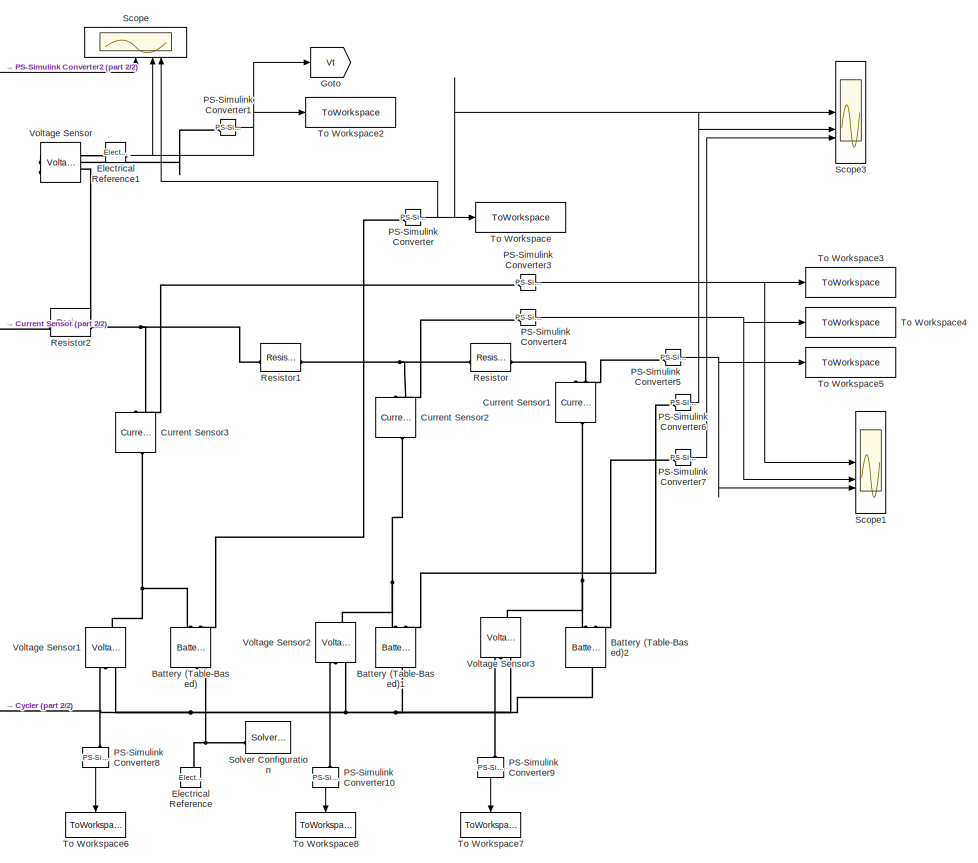
[diagram: root canvas - part 1/2, right side, full height]
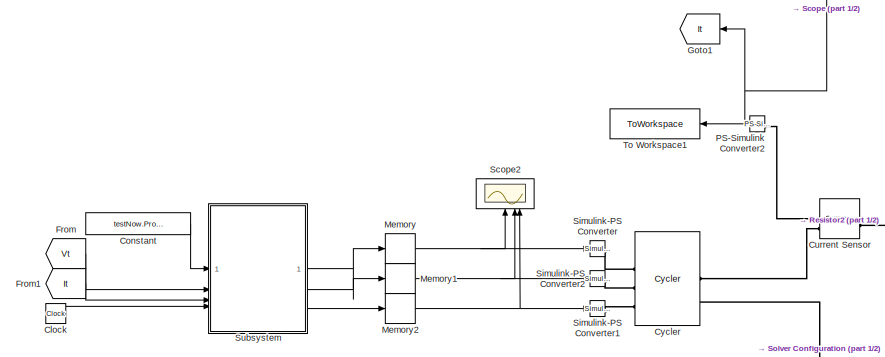
[diagram: root canvas - part 2/2, middle left region]
MODEL slx_6b83fe5bd4cd
KIND model
CONFIG AbsTol = auto
CONFIG EnableMultiTasking = off
CONFIG FixedStep = auto
CONFIG MaxStep = 0.1
CONFIG MinStep = auto
CONFIG RelTol = 1e-3
CONFIG SampleTimeConstraint = Unconstrained
CONFIG SolverName = VariableStepAuto
CONFIG StartTime = 0.0
CONFIG StopTime = 68000
BLOCK [Reference] Battery (Table-Based)  REF=batteryecm_lib/Battery
(Table-Based)
  NameLocation = right
  SourceBlock = batteryecm_lib/Battery\n(Table-Based)
  SourceType = Battery\n(Table-Based)
BLOCK [Reference] Battery (Table-Based)1  REF=batteryecm_lib/Battery
(Table-Based)
  NameLocation = right
  SourceBlock = batteryecm_lib/Battery\n(Table-Based)
  SourceType = Battery\n(Table-Based)
BLOCK [Reference] Battery (Table-Based)2  REF=batteryecm_lib/Battery
(Table-Based)
  NameLocation = right
  SourceBlock = batteryecm_lib/Battery\n(Table-Based)
  SourceType = Battery\n(Table-Based)
BLOCK [Clock] Clock
BLOCK [Constant] Constant
  Value = testNow.Procedure
BLOCK [Reference] Current Sensor  REF=fl_lib/Electrical/Electrical Sensors/Current Sensor
  NameLocation = top
  SourceBlock = fl_lib/Electrical/Electrical Sensors/Current Sensor
  SourceType = Current Sensor
BLOCK [Reference] Current Sensor1  REF=fl_lib/Electrical/Electrical Sensors/Current Sensor
  NameLocation = right
  SourceBlock = fl_lib/Electrical/Electrical Sensors/Current Sensor
  SourceType = Current Sensor
BLOCK [Reference] Current Sensor2  REF=fl_lib/Electrical/Electrical Sensors/Current Sensor
  NameLocation = right
  SourceBlock = fl_lib/Electrical/Electrical Sensors/Current Sensor
  SourceType = Current Sensor
BLOCK [Reference] Current Sensor3  REF=fl_lib/Electrical/Electrical Sensors/Current Sensor
  NameLocation = right
  SourceBlock = fl_lib/Electrical/Electrical Sensors/Current Sensor
  SourceType = Current Sensor
BLOCK [Reference] Cycler  REF=batt_lib/Cyclers/Cycler
  SourceBlock = batt_lib/Cyclers/Cycler
  SourceType = Cycler
BLOCK [Reference] Electrical Reference  REF=fl_lib/Electrical/Electrical Elements/Electrical Reference
  LibrarySourceBlock = ee_lib/Connectors &\nReferences/Electrical Reference
  NameLocation = right
  SourceBlock = fl_lib/Electrical/Electrical Elements/Electrical Reference
  SourceType = Electrical Reference
BLOCK [Reference] Electrical Reference1  REF=fl_lib/Electrical/Electrical Elements/Electrical Reference
  LibrarySourceBlock = ee_lib/Connectors &\nReferences/Electrical Reference
  NameLocation = top
  SourceBlock = fl_lib/Electrical/Electrical Elements/Electrical Reference
  SourceType = Electrical Reference
BLOCK [From] From
  GotoTag = Vt
BLOCK [From] From1
  GotoTag = It
BLOCK [Goto] Goto
  GotoTag = Vt
BLOCK [Goto] Goto1
  GotoTag = It
  NameLocation = top
BLOCK [Memory] Memory
BLOCK [Memory] Memory1
  InitialCondition = 2.7
BLOCK [Memory] Memory2
BLOCK [Reference] PS-Simulink Converter  REF=nesl_utility/PS-Simulink
Converter
  SourceBlock = nesl_utility/PS-Simulink\nConverter
  SourceType = PS-Simulink\nConverter
BLOCK [Reference] PS-Simulink Converter1  REF=nesl_utility/PS-Simulink
Converter
  SourceBlock = nesl_utility/PS-Simulink\nConverter
  SourceType = PS-Simulink\nConverter
BLOCK [Reference] PS-Simulink Converter10  REF=nesl_utility/PS-Simulink
Converter
  NameLocation = left
  SourceBlock = nesl_utility/PS-Simulink\nConverter
  SourceType = PS-Simulink\nConverter
BLOCK [Reference] PS-Simulink Converter2  REF=nesl_utility/PS-Simulink
Converter
  NameLocation = top
  SourceBlock = nesl_utility/PS-Simulink\nConverter
  SourceType = PS-Simulink\nConverter
BLOCK [Reference] PS-Simulink Converter3  REF=nesl_utility/PS-Simulink
Converter
  SourceBlock = nesl_utility/PS-Simulink\nConverter
  SourceType = PS-Simulink\nConverter
BLOCK [Reference] PS-Simulink Converter4  REF=nesl_utility/PS-Simulink
Converter
  SourceBlock = nesl_utility/PS-Simulink\nConverter
  SourceType = PS-Simulink\nConverter
BLOCK [Reference] PS-Simulink Converter5  REF=nesl_utility/PS-Simulink
Converter
  SourceBlock = nesl_utility/PS-Simulink\nConverter
  SourceType = PS-Simulink\nConverter
BLOCK [Reference] PS-Simulink Converter6  REF=nesl_utility/PS-Simulink
Converter
  SourceBlock = nesl_utility/PS-Simulink\nConverter
  SourceType = PS-Simulink\nConverter
BLOCK [Reference] PS-Simulink Converter7  REF=nesl_utility/PS-Simulink
Converter
  SourceBlock = nesl_utility/PS-Simulink\nConverter
  SourceType = PS-Simulink\nConverter
BLOCK [Reference] PS-Simulink Converter8  REF=nesl_utility/PS-Simulink
Converter
  NameLocation = left
  SourceBlock = nesl_utility/PS-Simulink\nConverter
  SourceType = PS-Simulink\nConverter
BLOCK [Reference] PS-Simulink Converter9  REF=nesl_utility/PS-Simulink
Converter
  NameLocation = left
  SourceBlock = nesl_utility/PS-Simulink\nConverter
  SourceType = PS-Simulink\nConverter
BLOCK [Reference] Resistor  REF=fl_lib/Electrical/Electrical Elements/Resistor
  SourceBlock = fl_lib/Electrical/Electrical Elements/Resistor
  SourceType = Resistor
BLOCK [Reference] Resistor1  REF=fl_lib/Electrical/Electrical Elements/Resistor
  SourceBlock = fl_lib/Electrical/Electrical Elements/Resistor
  SourceType = Resistor
BLOCK [Reference] Resistor2  REF=fl_lib/Electrical/Electrical Elements/Resistor
  SourceBlock = fl_lib/Electrical/Electrical Elements/Resistor
  SourceType = Resistor
BLOCK [Scope] Scope
  Floating = off
  NameLocation = right
  NumInputPorts = 3
  ScopeSpecificationString = Simulink.scopes.TimeScopeBlockCfg('CurrentConfiguration', extmgr.ConfigurationSet(extmgr.Configuration('Core','General UI',true),extmgr.Configuration('Core','Source UI',true),extmgr.Configuration('Sources','WiredSimulink',true,'DataLoggingVariableName','ScopeData1'),extmgr.Configuration('Visuals','Time Domain',true,'SerializedDisplays',{struct('MinYLimReal','-20.00000','MaxYLimReal','20.00000','YL...<+2869ch>
BLOCK [Scope] Scope1
  Floating = off
  NumInputPorts = 3
  ScopeSpecificationString = Simulink.scopes.TimeScopeBlockCfg('CurrentConfiguration', extmgr.ConfigurationSet(extmgr.Configuration('Core','General UI',true),extmgr.Configuration('Core','Source UI',true),extmgr.Configuration('Sources','WiredSimulink',true,'DataLoggingVariableName','ScopeData2'),extmgr.Configuration('Visuals','Time Domain',true,'SerializedDisplays',{struct('MinYLimReal','-10.90991','MaxYLimReal','10.90995','YL...<+2993ch>
BLOCK [Scope] Scope2
  Floating = off
  NameLocation = right
  NumInputPorts = 3
  ScopeSpecificationString = Simulink.scopes.TimeScopeBlockCfg('CurrentConfiguration', extmgr.ConfigurationSet(extmgr.Configuration('Core','General UI',true),extmgr.Configuration('Core','Source UI',true),extmgr.Configuration('Sources','WiredSimulink',true,'DataLoggingVariableName','ScopeData2'),extmgr.Configuration('Visuals','Time Domain',true,'SerializedDisplays',{struct('MinYLimReal','-20.00000','MaxYLimReal','20.00000','YL...<+2766ch>
BLOCK [Scope] Scope3
  Floating = off
  NumInputPorts = 3
  ScopeSpecificationString = Simulink.scopes.TimeScopeBlockCfg('CurrentConfiguration', extmgr.ConfigurationSet(extmgr.Configuration('Core','General UI',true),extmgr.Configuration('Core','Source UI',true),extmgr.Configuration('Sources','WiredSimulink',true,'DataLoggingVariableName','ScopeData3'),extmgr.Configuration('Visuals','Time Domain',true,'SerializedDisplays',{struct('MinYLimReal','0.46742','MaxYLimReal','0.50471','YLabe...<+1525ch>
BLOCK [Reference] Simulink-PS Converter  REF=nesl_utility/Simulink-PS
Converter
  SourceBlock = nesl_utility/Simulink-PS\nConverter
  SourceType = Simulink-PS\nConverter
BLOCK [Reference] Simulink-PS Converter1  REF=nesl_utility/Simulink-PS
Converter
  SourceBlock = nesl_utility/Simulink-PS\nConverter
  SourceType = Simulink-PS\nConverter
BLOCK [Reference] Simulink-PS Converter2  REF=nesl_utility/Simulink-PS
Converter
  SourceBlock = nesl_utility/Simulink-PS\nConverter
  SourceType = Simulink-PS\nConverter
BLOCK [Reference] Solver Configuration  REF=nesl_utility/Solver
Configuration
  NameLocation = top
  SourceBlock = nesl_utility/Solver\nConfiguration
  SourceType = Solver\nConfiguration
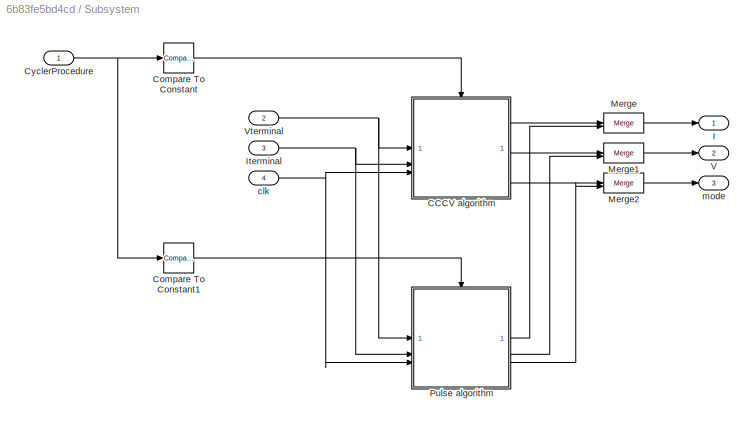
BLOCK [SubSystem] Subsystem
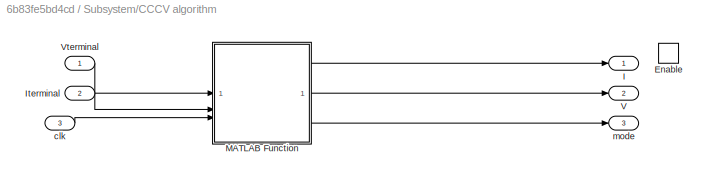
BLOCK [SubSystem] Subsystem/CCCV algorithm
BLOCK [EnablePort] Subsystem/CCCV algorithm/Enable
BLOCK [Outport] Subsystem/CCCV algorithm/I
BLOCK [Inport] Subsystem/CCCV algorithm/Iterminal
  Port = 2
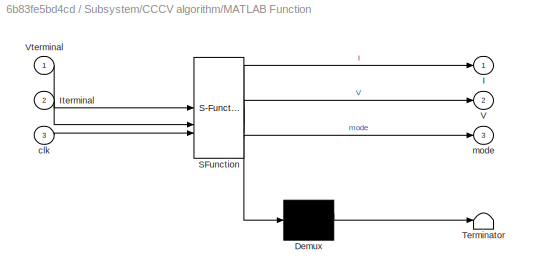
BLOCK [SubSystem] Subsystem/CCCV algorithm/MATLAB Function
  ErrorFcn = Stateflow.Translate.translate
  LibrarySourceBlock = simulink/User-Defined\nFunctions/MATLAB Function
  PermitHierarchicalResolution = ExplicitOnly
  SFBlockType = MATLAB Function
  TreatAsAtomicUnit = on
BLOCK [Demux] Subsystem/CCCV algorithm/MATLAB Function/ Demux 
  Outputs = 1
BLOCK [S-Function] Subsystem/CCCV algorithm/MATLAB Function/ SFunction 
  EnableBusSupport = on
  FunctionName = sf_sfun
  PortCounts = [3 4]
  SFcnIsStateOwnerBlock = off
  SFunctionDeploymentMode = off
  Tag = Stateflow S-Function 2
BLOCK [Terminator] Subsystem/CCCV algorithm/MATLAB Function/ Terminator 
BLOCK [Outport] Subsystem/CCCV algorithm/MATLAB Function/I
BLOCK [Inport] Subsystem/CCCV algorithm/MATLAB Function/Iterminal
  Port = 2
BLOCK [Outport] Subsystem/CCCV algorithm/MATLAB Function/V
  Port = 2
BLOCK [Inport] Subsystem/CCCV algorithm/MATLAB Function/Vterminal
BLOCK [Inport] Subsystem/CCCV algorithm/MATLAB Function/clk
  Port = 3
BLOCK [Outport] Subsystem/CCCV algorithm/MATLAB Function/mode
  Port = 3
BLOCK [Outport] Subsystem/CCCV algorithm/V
  Port = 2
BLOCK [Inport] Subsystem/CCCV algorithm/Vterminal
BLOCK [Inport] Subsystem/CCCV algorithm/clk
  Port = 3
BLOCK [Outport] Subsystem/CCCV algorithm/mode
  Port = 3
BLOCK [Reference] Subsystem/Compare To Constant  REF=simulink/Logic and Bit
Operations/Compare
To Constant
  SourceBlock = simulink/Logic and Bit\nOperations/Compare\nTo Constant
  SourceType = Compare To Constant
BLOCK [Reference] Subsystem/Compare To Constant1  REF=simulink/Logic and Bit
Operations/Compare
To Constant
  SourceBlock = simulink/Logic and Bit\nOperations/Compare\nTo Constant
  SourceType = Compare To Constant
BLOCK [Inport] Subsystem/CyclerProcedure
BLOCK [Outport] Subsystem/I
BLOCK [Inport] Subsystem/Iterminal
  Port = 3
BLOCK [Merge] Subsystem/Merge
BLOCK [Merge] Subsystem/Merge1
BLOCK [Merge] Subsystem/Merge2
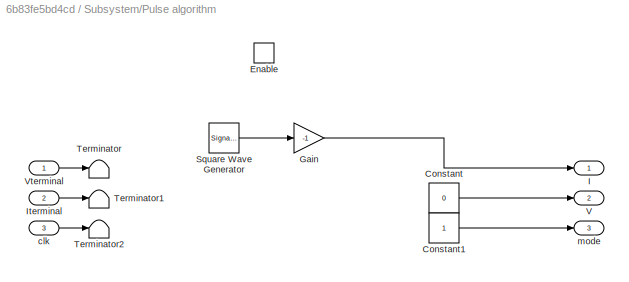
BLOCK [SubSystem] Subsystem/Pulse algorithm
BLOCK [Constant] Subsystem/Pulse algorithm/Constant
  Value = 0
BLOCK [Constant] Subsystem/Pulse algorithm/Constant1
BLOCK [EnablePort] Subsystem/Pulse algorithm/Enable
BLOCK [Gain] Subsystem/Pulse algorithm/Gain
  Gain = -1
BLOCK [Outport] Subsystem/Pulse algorithm/I
BLOCK [Inport] Subsystem/Pulse algorithm/Iterminal
  Port = 2
BLOCK [SignalGenerator] Subsystem/Pulse algorithm/Square Wave Generator
  Amplitude = testNow.PulseAmplitude
  Frequency = 1/testNow.PulseWidth
  WaveForm = square
BLOCK [Terminator] Subsystem/Pulse algorithm/Terminator
BLOCK [Terminator] Subsystem/Pulse algorithm/Terminator1
BLOCK [Terminator] Subsystem/Pulse algorithm/Terminator2
BLOCK [Outport] Subsystem/Pulse algorithm/V
  Port = 2
BLOCK [Inport] Subsystem/Pulse algorithm/Vterminal
BLOCK [Inport] Subsystem/Pulse algorithm/clk
  Port = 3
BLOCK [Outport] Subsystem/Pulse algorithm/mode
  Port = 3
BLOCK [Outport] Subsystem/V
  Port = 2
BLOCK [Inport] Subsystem/Vterminal
  Port = 2
BLOCK [Inport] Subsystem/clk
  Port = 4
BLOCK [Outport] Subsystem/mode
  Port = 3
BLOCK [ToWorkspace] To Workspace
  MaxDataPoints = inf
  SampleTime = -1
  Save2DSignal = 2-D array (concatenate along first dimension)
  VariableName = SOC
BLOCK [ToWorkspace] To Workspace1
  MaxDataPoints = inf
  NameLocation = top
  SampleTime = -1
  Save2DSignal = 2-D array (concatenate along first dimension)
  VariableName = I
BLOCK [ToWorkspace] To Workspace2
  MaxDataPoints = inf
  SampleTime = -1
  Save2DSignal = 2-D array (concatenate along first dimension)
  VariableName = V
BLOCK [ToWorkspace] To Workspace3
  MaxDataPoints = inf
  SampleTime = -1
  Save2DSignal = 2-D array (concatenate along first dimension)
  VariableName = I1
BLOCK [ToWorkspace] To Workspace4
  MaxDataPoints = inf
  SampleTime = -1
  Save2DSignal = 2-D array (concatenate along first dimension)
  VariableName = I2
BLOCK [ToWorkspace] To Workspace5
  MaxDataPoints = inf
  SampleTime = -1
  Save2DSignal = 2-D array (concatenate along first dimension)
  VariableName = I3
BLOCK [ToWorkspace] To Workspace6
  MaxDataPoints = inf
  NameLocation = left
  SampleTime = -1
  Save2DSignal = 2-D array (concatenate along first dimension)
  VariableName = v1
BLOCK [ToWorkspace] To Workspace7
  MaxDataPoints = inf
  NameLocation = left
  SampleTime = -1
  Save2DSignal = 2-D array (concatenate along first dimension)
  VariableName = v3
BLOCK [ToWorkspace] To Workspace8
  MaxDataPoints = inf
  NameLocation = left
  SampleTime = -1
  Save2DSignal = 2-D array (concatenate along first dimension)
  VariableName = v2
BLOCK [Reference] Voltage Sensor  REF=fl_lib/Electrical/Electrical Sensors/Voltage Sensor
  NameLocation = top
  SourceBlock = fl_lib/Electrical/Electrical Sensors/Voltage Sensor
  SourceType = Voltage Sensor
BLOCK [Reference] Voltage Sensor1  REF=fl_lib/Electrical/Electrical Sensors/Voltage Sensor
  NameLocation = right
  SourceBlock = fl_lib/Electrical/Electrical Sensors/Voltage Sensor
  SourceType = Voltage Sensor
BLOCK [Reference] Voltage Sensor2  REF=fl_lib/Electrical/Electrical Sensors/Voltage Sensor
  NameLocation = right
  SourceBlock = fl_lib/Electrical/Electrical Sensors/Voltage Sensor
  SourceType = Voltage Sensor
BLOCK [Reference] Voltage Sensor3  REF=fl_lib/Electrical/Electrical Sensors/Voltage Sensor
  NameLocation = right
  SourceBlock = fl_lib/Electrical/Electrical Sensors/Voltage Sensor
  SourceType = Voltage Sensor
LINE Clock:1 -> Subsystem:4
LINE Constant:1 -> Subsystem:1
LINE From1:1 -> Subsystem:3
LINE From:1 -> Subsystem:2
NET Memory1:1 -> Scope2:2, Simulink-PS Converter2:1
NET Memory2:1 -> Scope2:3, Simulink-PS Converter1:1
NET Memory:1 -> Scope2:1, Simulink-PS Converter:1
LINE PS-Simulink Converter10:1 -> To Workspace8:1
NET PS-Simulink Converter1:1 -> Goto:1, Scope:2, To Workspace2:1
NET PS-Simulink Converter2:1 -> Goto1:1, Scope:1, To Workspace1:1
NET PS-Simulink Converter3:1 -> Scope1:1, To Workspace3:1
NET PS-Simulink Converter4:1 -> Scope1:2, To Workspace4:1
NET PS-Simulink Converter5:1 -> Scope1:3, To Workspace5:1
LINE PS-Simulink Converter6:1 -> Scope3:2
LINE PS-Simulink Converter7:1 -> Scope3:3
LINE PS-Simulink Converter8:1 -> To Workspace6:1
LINE PS-Simulink Converter9:1 -> To Workspace7:1
NET PS-Simulink Converter:1 -> Scope3:1, Scope:3, To Workspace:1
LINE Subsystem/CCCV algorithm/Iterminal:1 -> Subsystem/CCCV algorithm/MATLAB Function:2
LINE Subsystem/CCCV algorithm/MATLAB Function:1 -> Subsystem/CCCV algorithm/I:1
LINE Subsystem/CCCV algorithm/MATLAB Function:2 -> Subsystem/CCCV algorithm/V:1
LINE Subsystem/CCCV algorithm/MATLAB Function:3 -> Subsystem/CCCV algorithm/mode:1
LINE Subsystem/CCCV algorithm/Vterminal:1 -> Subsystem/CCCV algorithm/MATLAB Function:1
LINE Subsystem/CCCV algorithm/clk:1 -> Subsystem/CCCV algorithm/MATLAB Function:3
LINE Subsystem/CCCV algorithm:1 -> Subsystem/Merge:1
LINE Subsystem/CCCV algorithm:2 -> Subsystem/Merge1:1
LINE Subsystem/CCCV algorithm:3 -> Subsystem/Merge2:1
LINE Subsystem/Compare To Constant1:1 -> Subsystem/Pulse algorithm:enable
LINE Subsystem/Compare To Constant:1 -> Subsystem/CCCV algorithm:enable
NET Subsystem/CyclerProcedure:1 -> Subsystem/Compare To Constant1:1, Subsystem/Compare To Constant:1
NET Subsystem/Iterminal:1 -> Subsystem/CCCV algorithm:2, Subsystem/Pulse algorithm:2
LINE Subsystem/Merge1:1 -> Subsystem/V:1
LINE Subsystem/Merge2:1 -> Subsystem/mode:1
LINE Subsystem/Merge:1 -> Subsystem/I:1
LINE Subsystem/Pulse algorithm/Constant1:1 -> Subsystem/Pulse algorithm/mode:1
LINE Subsystem/Pulse algorithm/Constant:1 -> Subsystem/Pulse algorithm/V:1
LINE Subsystem/Pulse algorithm/Gain:1 -> Subsystem/Pulse algorithm/I:1
LINE Subsystem/Pulse algorithm/Iterminal:1 -> Subsystem/Pulse algorithm/Terminator1:1
LINE Subsystem/Pulse algorithm/Square Wave Generator:1 -> Subsystem/Pulse algorithm/Gain:1
LINE Subsystem/Pulse algorithm/Vterminal:1 -> Subsystem/Pulse algorithm/Terminator:1
LINE Subsystem/Pulse algorithm/clk:1 -> Subsystem/Pulse algorithm/Terminator2:1
LINE Subsystem/Pulse algorithm:1 -> Subsystem/Merge:2
LINE Subsystem/Pulse algorithm:2 -> Subsystem/Merge1:2
LINE Subsystem/Pulse algorithm:3 -> Subsystem/Merge2:2
NET Subsystem/Vterminal:1 -> Subsystem/CCCV algorithm:1, Subsystem/Pulse algorithm:1
NET Subsystem/clk:1 -> Subsystem/CCCV algorithm:3, Subsystem/Pulse algorithm:3
LINE Subsystem:1 -> Memory:1
LINE Subsystem:2 -> Memory1:1
LINE Subsystem:3 -> Memory2:1
PNET net1: Battery (Table-Based)1:LConn1 -- Current Sensor2:LConn1 -- Voltage Sensor2:LConn1
PLINE Battery (Table-Based)1:LConn2 -- PS-Simulink Converter6:LConn1
PNET net2: Battery (Table-Based)1:RConn1 -- Battery (Table-Based)2:RConn1 -- Battery (Table-Based):RConn1 -- Cycler:RConn2 -- Electrical Reference:LConn1 -- Solver Configuration:RConn1 -- Voltage Sensor1:RConn2 -- Voltage Sensor2:RConn2 -- Voltage Sensor3:RConn2
PNET net3: Battery (Table-Based)2:LConn1 -- Current Sensor1:LConn1 -- Voltage Sensor3:LConn1
PLINE Battery (Table-Based)2:LConn2 -- PS-Simulink Converter7:LConn1
PNET net4: Battery (Table-Based):LConn1 -- Current Sensor3:LConn1 -- Voltage Sensor1:LConn1
PLINE Battery (Table-Based):LConn2 -- PS-Simulink Converter:LConn1
PLINE Current Sensor1:RConn1 -- PS-Simulink Converter5:LConn1
PLINE Current Sensor1:RConn2 -- Resistor:RConn1
PLINE Current Sensor2:RConn1 -- PS-Simulink Converter4:LConn1
PNET net5: Current Sensor2:RConn2 -- Resistor1:RConn1 -- Resistor:LConn1
PLINE Current Sensor3:RConn1 -- PS-Simulink Converter3:LConn1
PNET net6: Current Sensor3:RConn2 -- Resistor1:LConn1 -- Resistor2:RConn1
PNET net7: Current Sensor:LConn1 -- Resistor2:LConn1 -- Voltage Sensor:LConn1
PLINE Current Sensor:RConn1 -- PS-Simulink Converter2:LConn1
PLINE Current Sensor:RConn2 -- Cycler:RConn1
PLINE Cycler:LConn1 -- Simulink-PS Converter:RConn1
PLINE Cycler:LConn2 -- Simulink-PS Converter2:RConn1
PLINE Cycler:LConn3 -- Simulink-PS Converter1:RConn1
PLINE Electrical Reference1:LConn1 -- Voltage Sensor:RConn2
PLINE PS-Simulink Converter10:LConn1 -- Voltage Sensor2:RConn1
PLINE PS-Simulink Converter1:LConn1 -- Voltage Sensor:RConn1
PLINE PS-Simulink Converter8:LConn1 -- Voltage Sensor1:RConn1
PLINE PS-Simulink Converter9:LConn1 -- Voltage Sensor3:RConn1
note: NET lines group one-source signal fan-out (src -> all destinations, sorted); 1:1 wires keep LINE; PNET lines group multi-terminal physical nets as a canonical sorted terminal list (undirected conserving connections); 2-terminal nets keep the pairwise PLINE form
CHART Subsystem/CCCV algorithm/MATLAB Function states=1 transitions=1
  STATE_LABEL 'eML_blk_kernel()'
  STATE_LABEL 'SCRIPT:\nfunction [I,V,mode] = fcn(Vterminal, Iterminal, clk)\n\npersistent mode_now I_now V_now t_now;\n\n\n% mode_now:\n% 1 = discharge CC\n% 2 = discharge CV\n% 3 = charge CC\n% 4 = charge CV\n\nif(isempty(mode_now))\n    t_now = 0;\n    mode_now = 1;\n    I_now = 16;\n    V_now = 2.7;\nend\n\nIcutoff = 50e-3;\nVmin = 2.7;\nVmax = 4.2;\nt_rest = 10*60; % 10 minutes rest period.\n\n\nif(mode_now==1 && Vterminal <= Vmin)...<+617ch>'
CHART  states=0 transitions=0
